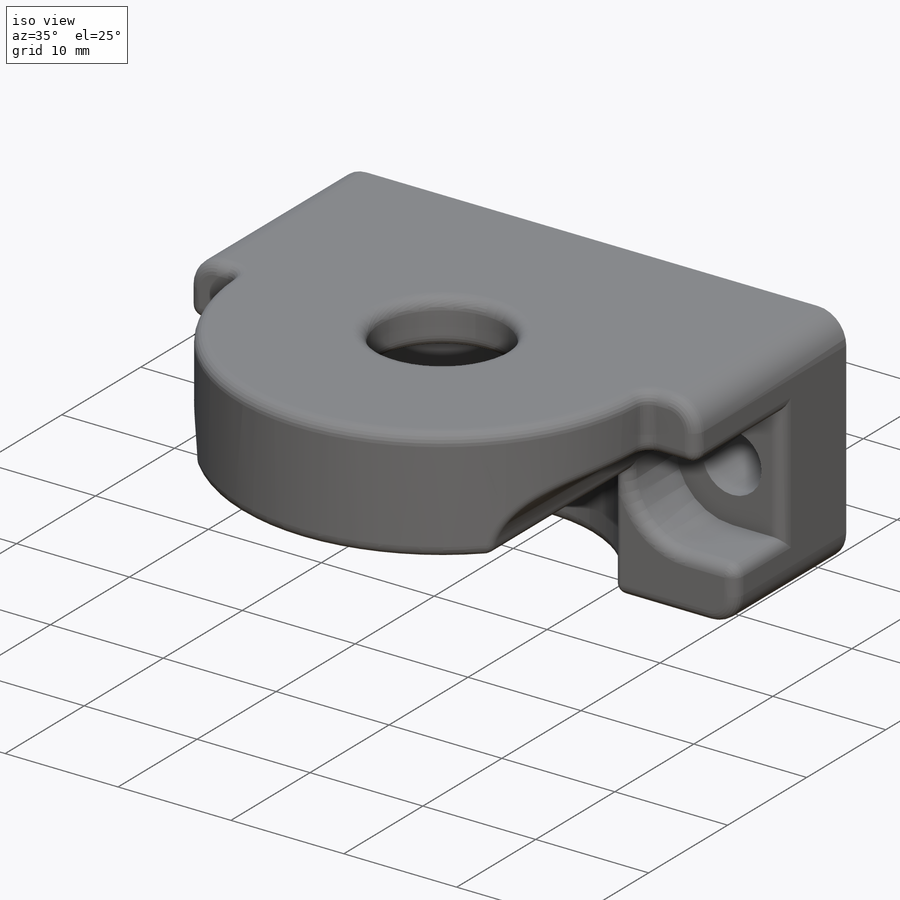
[diagram: iso view]
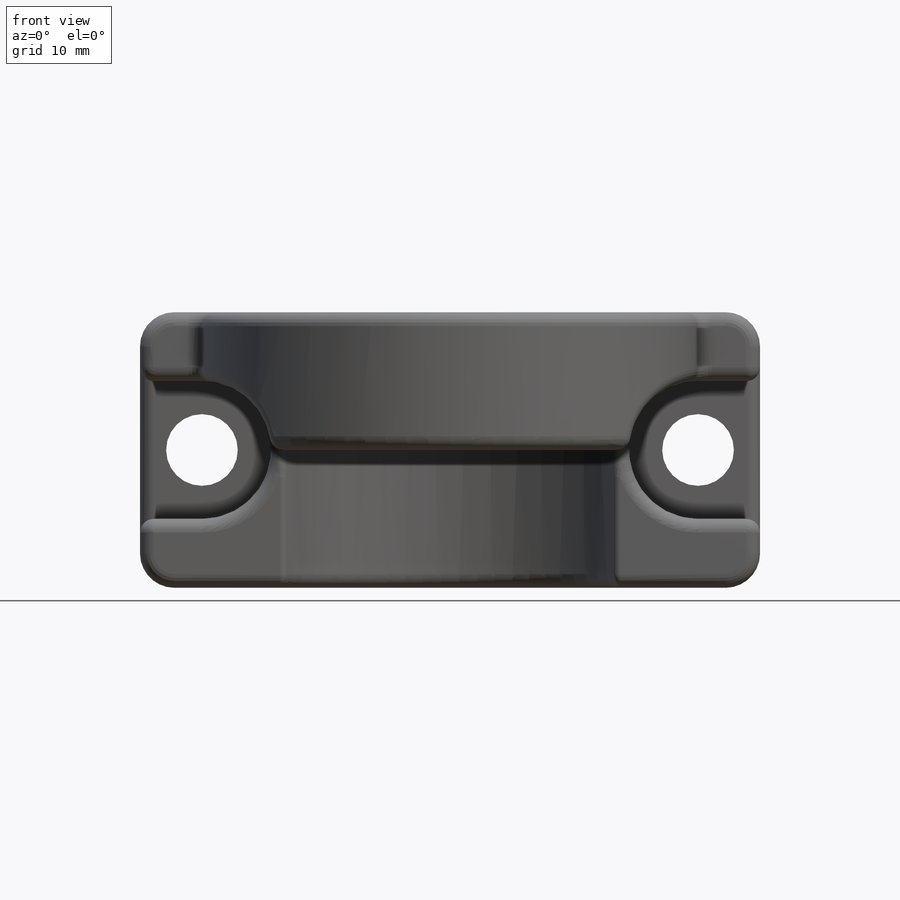
[diagram: front view]
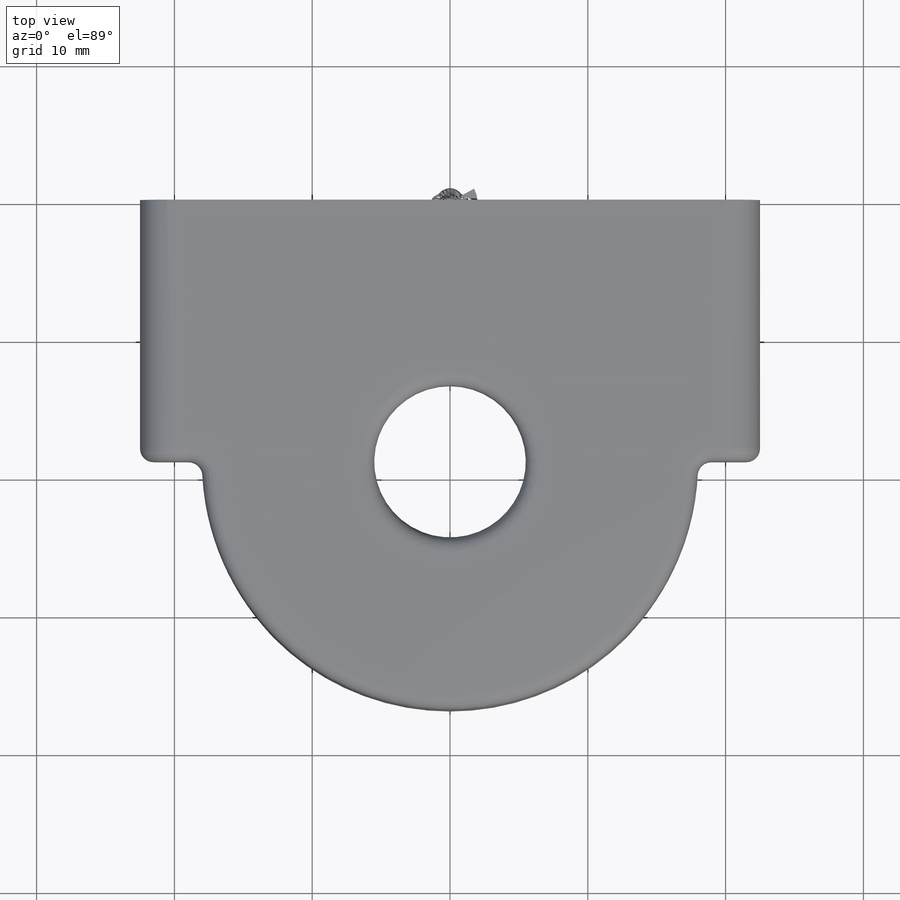
[diagram: top view]
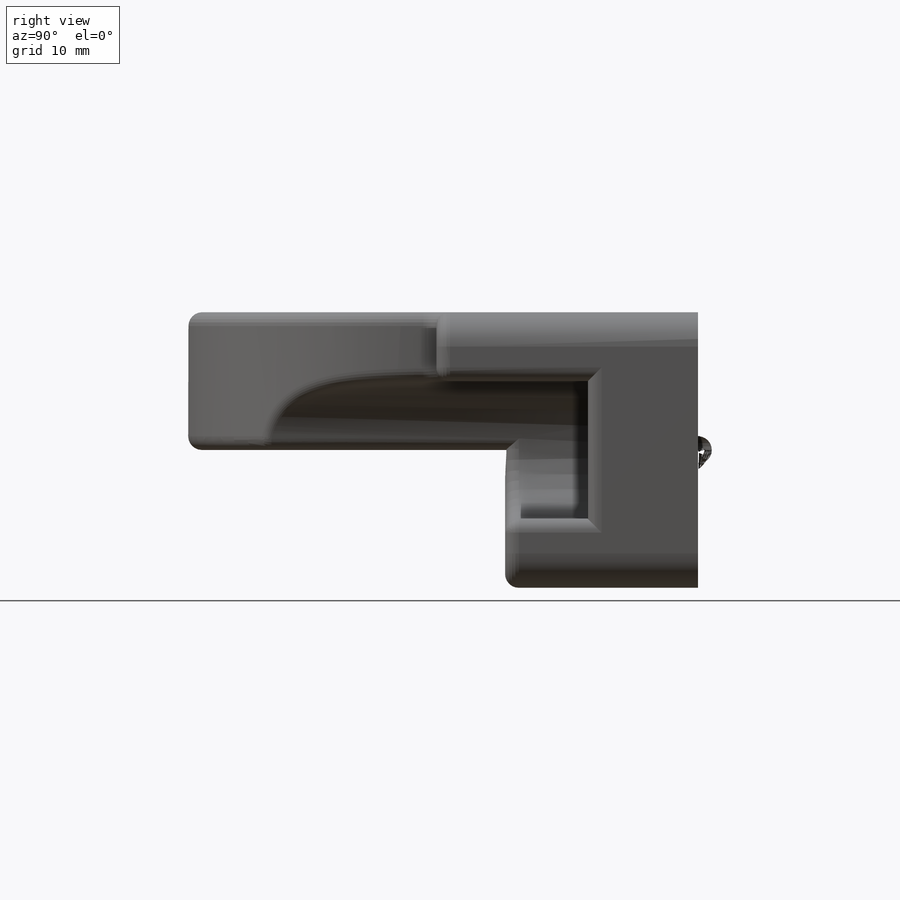
[diagram: right view]
SOLIDWORKS PART (.sldprt)
format: sldprt  version: not decoded by parser v0  size: 1,079,808 bytes
history: native  units: mm
features: sketch x7, cut_extrude x6, fillet x3, material x1, extrude x1 (+13 scaffold rows collapsed)
feature tree (31):
  scaffold x13  (default folders/planes/origin — collapsed)
  material  "ABS"
  sketch  "Sketch1"  dims[c1.D3=2.5mm c1.D4=5.2mm c1.D6=5.2mm c1.D1=45.0mm c1.D2=20.0mm c1.D5=18.0mm c2.D6=36.0mm]
  extrude  "Boss-Extrude1"  Depth=37mm
  sketch  "Sketch2"  dims[c1.D1=26.0mm c1.D2=26.0mm c2.D1=13.0mm c2.D2=19.0mm c2.D3=14.0mm]
  cut_extrude  "Cut-Extrude1"  Depth=10mm
  sketch  "Sketch3"
  cut_extrude  "Cut-Extrude2"  [1 undecoded]
  sketch  "Sketch4"  dims[D1=10.0mm D2=10.0mm]
  cut_extrude  "Cut-Extrude3"  Depth=6mm
  sketch  "Sketch5"  dims[D1=22.2mm]
  cut_extrude  "Cut-Extrude4"  Depth=6mm
  sketch  "Sketch6"  dims[D1=11.0mm]
  cut_extrude  "Cut-Extrude5"  Depth=1mm
  fillet  "Fillet1"  Radius=1mm
  fillet  "Fillet3"  Radius=0.5mm
  sketch  "Sketch7"  dims[D1=0.0mm]
  cut_extrude  "Cut-Extrude6"  [1 undecoded]
  fillet  "Fillet4"  Radius=1mm
decode coverage: 14 of 17 modeling features carry decoded parameters
note: 2 parameter values undecoded
note: suppression state not decoded; provenance and decode notes live in map.json
